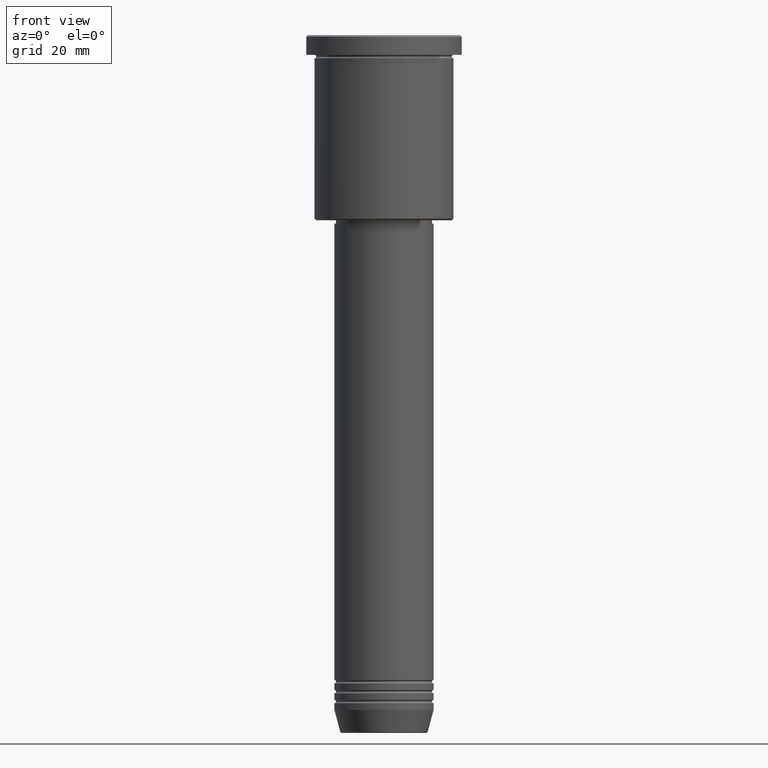
[diagram: clean part render]
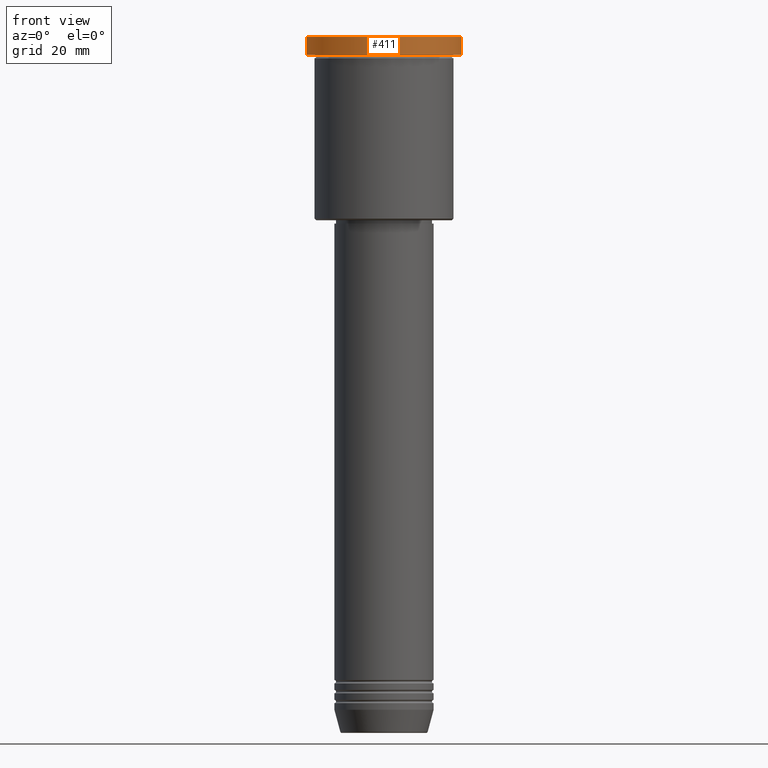
[diagram: same view with one face highlighted and labeled with its STEP entity id]
A machine part, front view. The second image highlights one B-rep face of the part: STEP entity #411.
In plain terms, the highlighted cylindrical surface (partial cylindrical patch) has radius 23.5 mm, axis along (-0, -0, 1).
Its self-contained STEP definition (entity closure, byte-faithful):
#60 = LINE ( 'NONE', #257, #750 ) ;
#161 = CARTESIAN_POINT ( 'NONE',  ( -23.50000000000000000, 2.877919977996280320E-15, -0.5000000000000004441 ) ) ;
#176 = DIRECTION ( 'NONE',  ( 1.000000000000000000, 0.000000000000000000, 0.000000000000000000 ) ) ;
#257 = CARTESIAN_POINT ( 'NONE',  ( -23.50000000000000000, 2.877919977996280320E-15, 0.000000000000000000 ) ) ;
#268 = CARTESIAN_POINT ( 'NONE',  ( 0.000000000000000000, 0.000000000000000000, 0.000000000000000000 ) ) ;
#337 = VERTEX_POINT ( 'NONE', #700 ) ;
#385 = EDGE_CURVE ( 'NONE', #807, #853, #60, .T. ) ;
#411 = ADVANCED_FACE ( 'NONE', ( #1174 ), #720, .T. ) ;
#417 = VERTEX_POINT ( 'NONE', #726 ) ;
#456 = ORIENTED_EDGE ( 'NONE', *, *, #749, .T. ) ;
#475 = ORIENTED_EDGE ( 'NONE', *, *, #385, .F. ) ;
#479 = CARTESIAN_POINT ( 'NONE',  ( 23.50000000000000000, 0.000000000000000000, 0.000000000000000000 ) ) ;
#490 = CARTESIAN_POINT ( 'NONE',  ( 0.000000000000000000, 0.000000000000000000, -5.999999999999994671 ) ) ;
#542 = AXIS2_PLACEMENT_3D ( 'NONE', #490, #587, #1131 ) ;
#545 = DIRECTION ( 'NONE',  ( -0.000000000000000000, -0.000000000000000000, 1.000000000000000000 ) ) ;
#587 = DIRECTION ( 'NONE',  ( -0.000000000000000000, -0.000000000000000000, 1.000000000000000000 ) ) ;
#599 = CIRCLE ( 'NONE', #542, 23.50000000000000000 ) ;
#623 = DIRECTION ( 'NONE',  ( -0.000000000000000000, -0.000000000000000000, 1.000000000000000000 ) ) ;
#663 = EDGE_CURVE ( 'NONE', #337, #853, #849, .T. ) ;
#666 = CARTESIAN_POINT ( 'NONE',  ( 0.000000000000000000, 0.000000000000000000, -0.5000000000000004441 ) ) ;
#700 = CARTESIAN_POINT ( 'NONE',  ( 23.50000000000000000, 0.000000000000000000, -0.5000000000000004441 ) ) ;
#720 = CYLINDRICAL_SURFACE ( 'NONE', #880, 23.50000000000000000 ) ;
#726 = CARTESIAN_POINT ( 'NONE',  ( 23.50000000000000000, 0.000000000000000000, -5.999999999999994671 ) ) ;
#739 = DIRECTION ( 'NONE',  ( -0.000000000000000000, -0.000000000000000000, 1.000000000000000000 ) ) ;
#749 = EDGE_CURVE ( 'NONE', #807, #417, #599, .T. ) ;
#750 = VECTOR ( 'NONE', #623, 1000.000000000000000 ) ;
#752 = AXIS2_PLACEMENT_3D ( 'NONE', #666, #930, #1005 ) ;
#798 = EDGE_LOOP ( 'NONE', ( #475, #456, #1126, #910 ) ) ;
#807 = VERTEX_POINT ( 'NONE', #1029 ) ;
#849 = CIRCLE ( 'NONE', #752, 23.50000000000000000 ) ;
#852 = LINE ( 'NONE', #479, #917 ) ;
#853 = VERTEX_POINT ( 'NONE', #161 ) ;
#880 = AXIS2_PLACEMENT_3D ( 'NONE', #268, #545, #176 ) ;
#910 = ORIENTED_EDGE ( 'NONE', *, *, #663, .T. ) ;
#917 = VECTOR ( 'NONE', #739, 1000.000000000000000 ) ;
#930 = DIRECTION ( 'NONE',  ( 0.000000000000000000, 0.000000000000000000, -1.000000000000000000 ) ) ;
#932 = EDGE_CURVE ( 'NONE', #417, #337, #852, .T. ) ;
#1005 = DIRECTION ( 'NONE',  ( 1.000000000000000000, 0.000000000000000000, 0.000000000000000000 ) ) ;
#1029 = CARTESIAN_POINT ( 'NONE',  ( -23.50000000000000000, 2.877919977996280320E-15, -5.999999999999994671 ) ) ;
#1126 = ORIENTED_EDGE ( 'NONE', *, *, #932, .T. ) ;
#1131 = DIRECTION ( 'NONE',  ( 1.000000000000000000, 0.000000000000000000, 0.000000000000000000 ) ) ;
#1174 = FACE_OUTER_BOUND ( 'NONE', #798, .T. ) ;